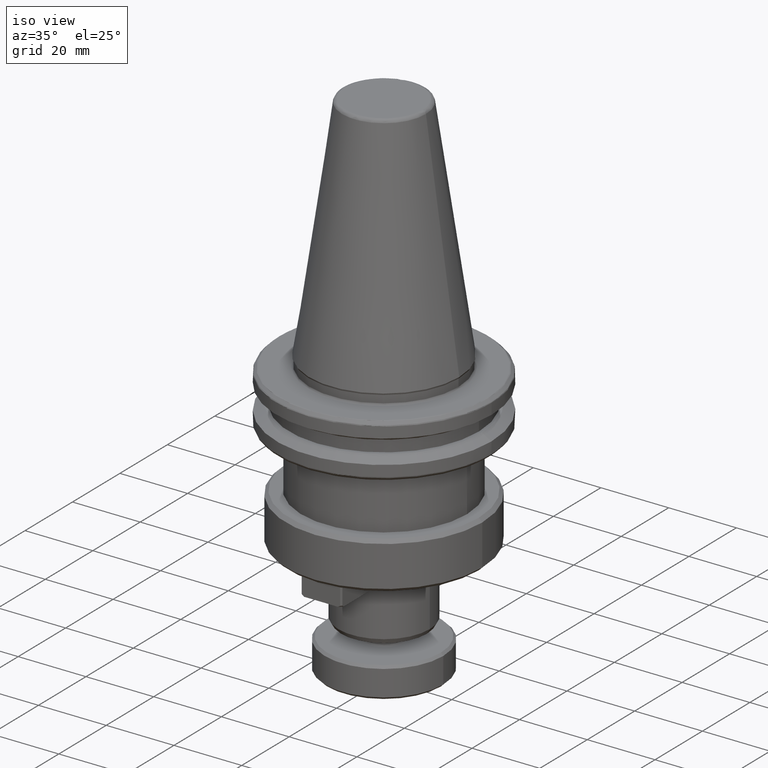
[diagram: clean part render]
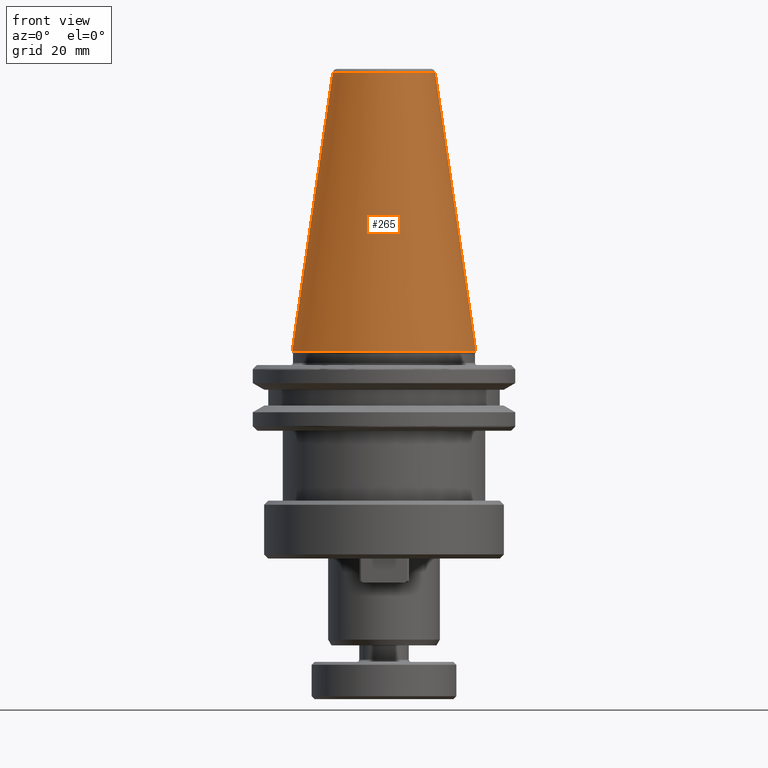
[diagram: tour spotlight — one face highlighted and labeled with its STEP entity id]
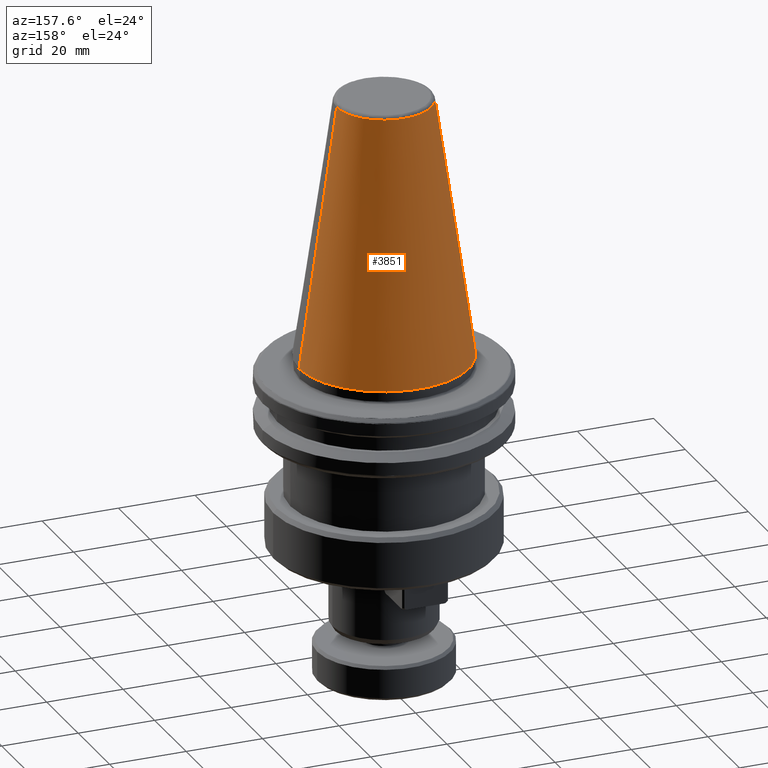
[diagram: tour spotlight — one face highlighted and labeled with its STEP entity id]
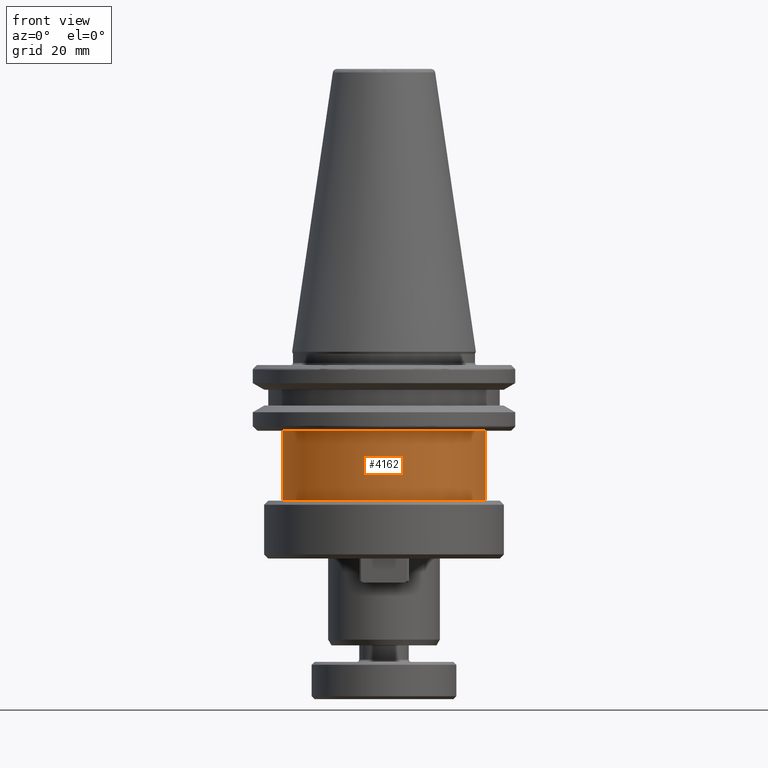
[diagram: tour spotlight — one face highlighted and labeled with its STEP entity id]
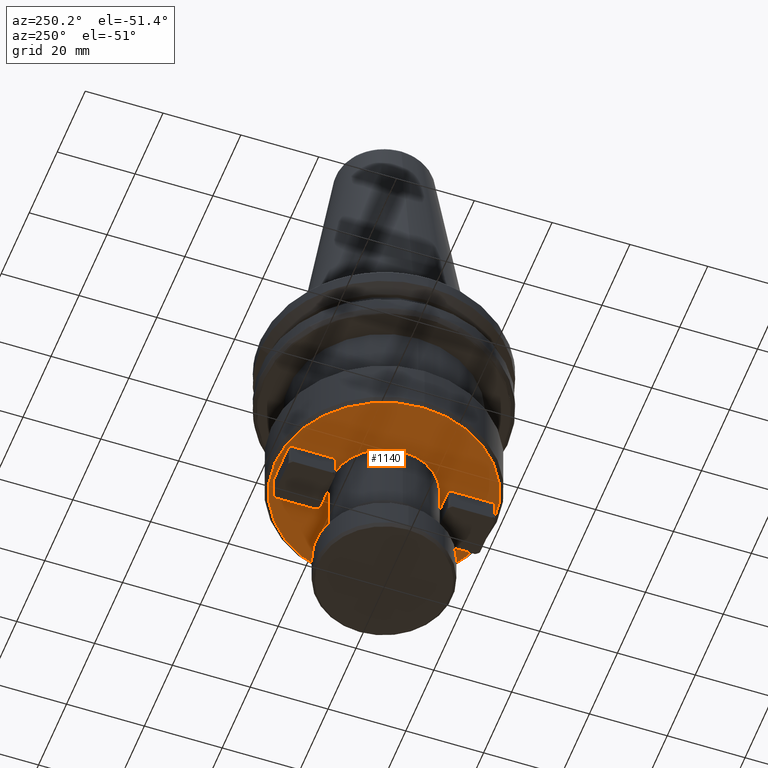
[diagram: tour spotlight — one face highlighted and labeled with its STEP entity id]
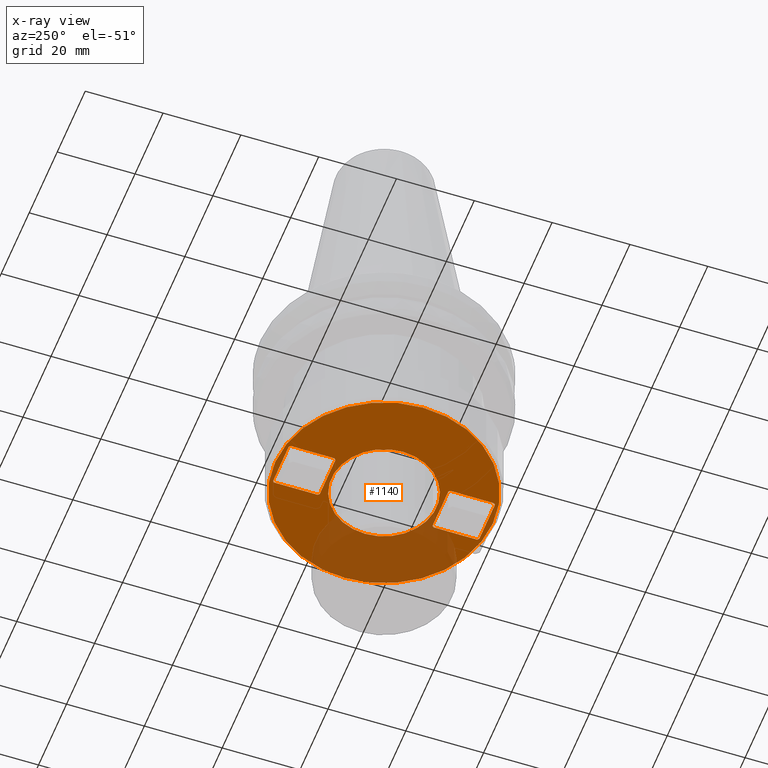
[diagram: x-ray of the same camera — body ghosted, this tour face saturated]
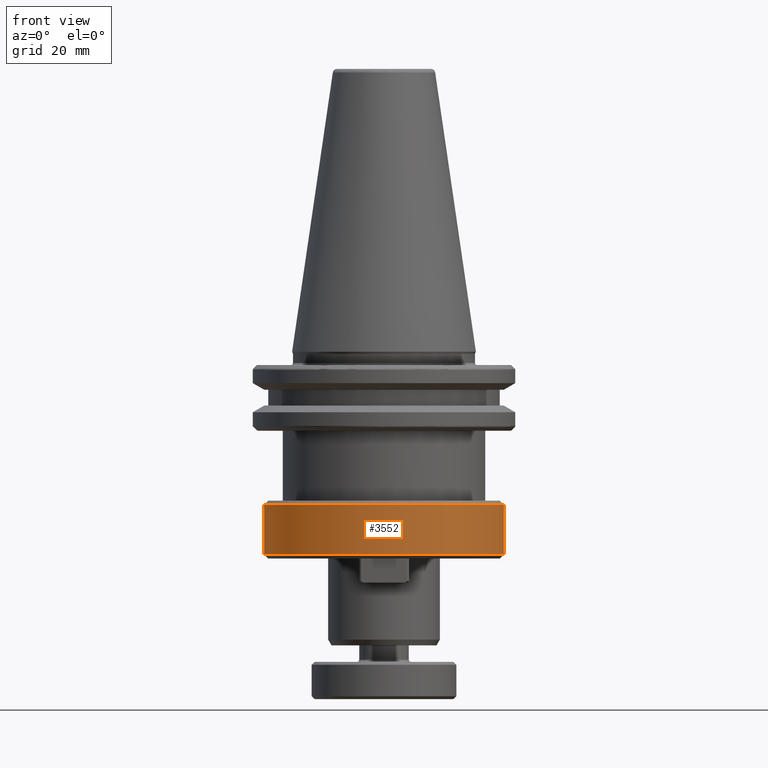
[diagram: tour spotlight — one face highlighted and labeled with its STEP entity id]
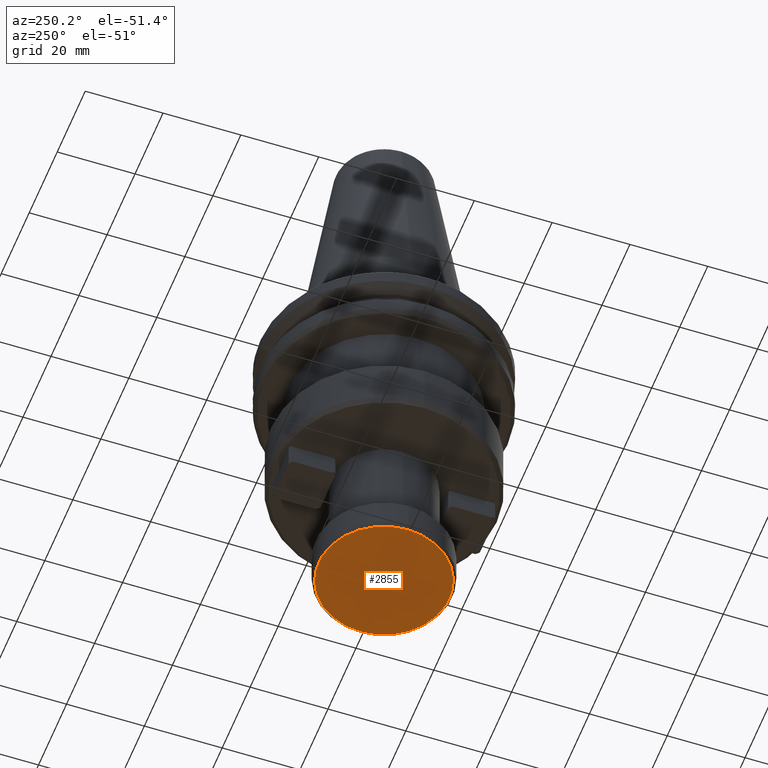
[diagram: tour spotlight — one face highlighted and labeled with its STEP entity id]
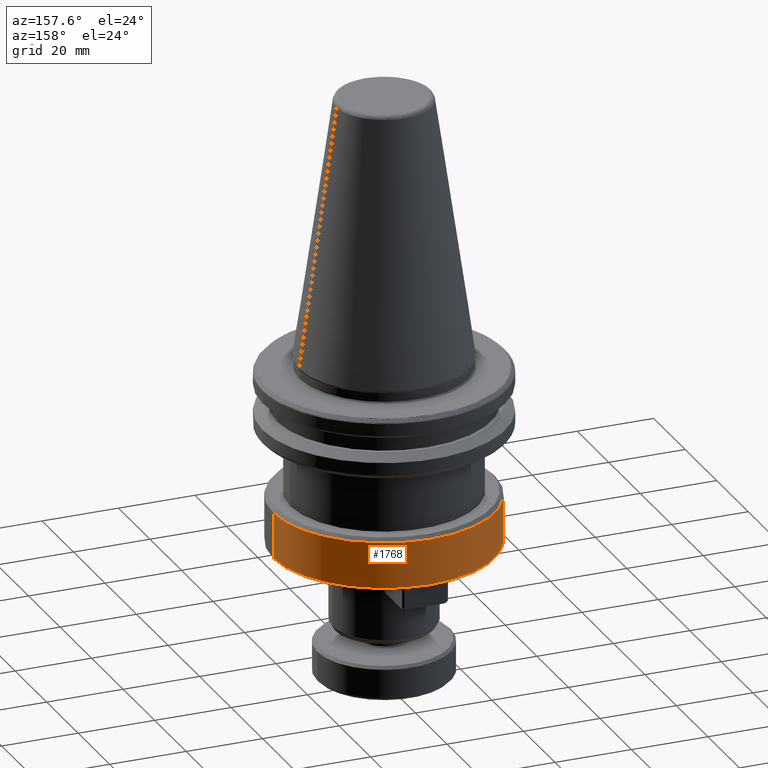
[diagram: tour spotlight — one face highlighted and labeled with its STEP entity id]
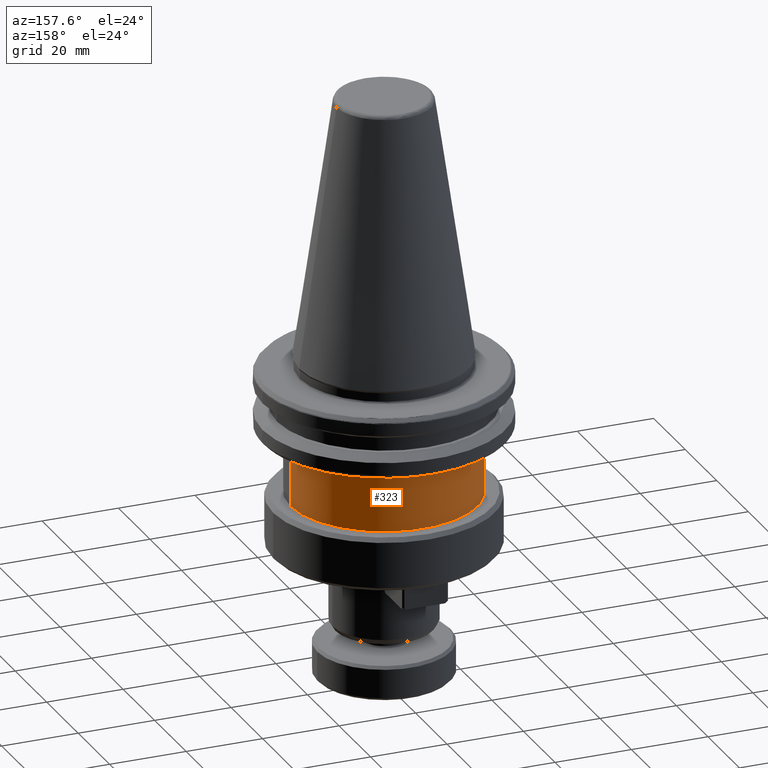
[diagram: tour spotlight — one face highlighted and labeled with its STEP entity id]
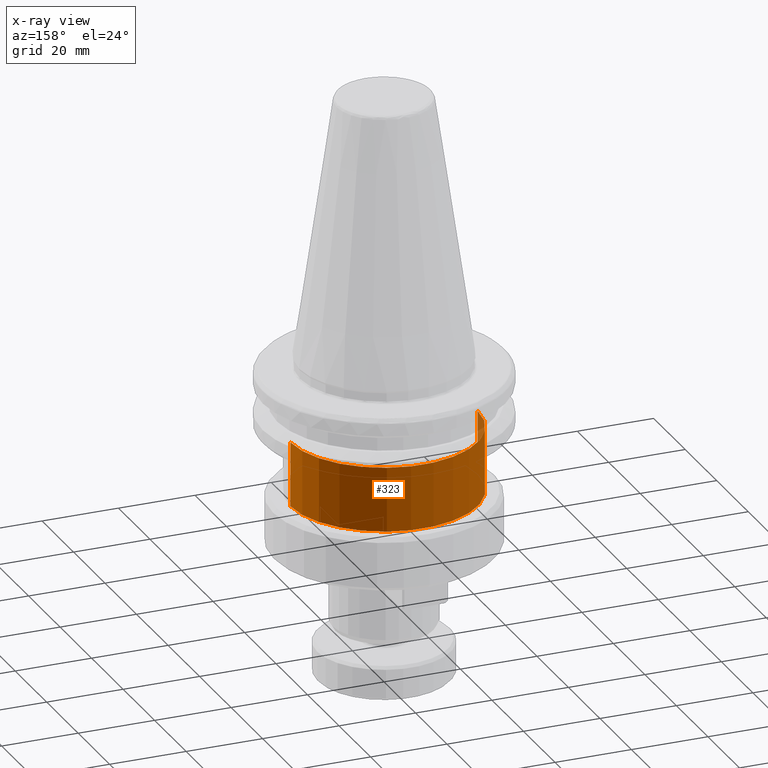
[diagram: x-ray of the same camera — body ghosted, this tour face saturated]
A machine part: a face-by-face anatomy tour. The part has 119 B-rep faces; the first image is the clean iso view, then the 8 largest visible faces are spotlighted one at a time (largest first), each with its STEP entity span.

Face 1 — front view, entity #265. In plain terms, the highlighted conical surface has half-angle 8.297 deg.
Definition (entity closure, byte-faithful):
#265 = ADVANCED_FACE ( 'NONE', ( #1366 ), #2048, .T. ) ;
#392 = CARTESIAN_POINT ( 'NONE',  ( 12.37469537611110800, 2.118620309691396900E-015, 67.54430822726729400 ) ) ;
#422 = VERTEX_POINT ( 'NONE', #1571 ) ;
#456 = ORIENTED_EDGE ( 'NONE', *, *, #2027, .F. ) ;
#620 = VECTOR ( 'NONE', #3922, 1000.000000000000000 ) ;
#717 = ORIENTED_EDGE ( 'NONE', *, *, #2779, .T. ) ;
#828 = CIRCLE ( 'NONE', #1792, 12.37469537611110800 ) ;
#858 = AXIS2_PLACEMENT_3D ( 'NONE', #1757, #1755, #1748 ) ;
#1298 = VECTOR ( 'NONE', #1623, 1000.000000000000000 ) ;
#1305 = CARTESIAN_POINT ( 'NONE',  ( 22.22500000000000500, 0.0000000000000000000, 0.0000000000000000000 ) ) ;
#1353 = ORIENTED_EDGE ( 'NONE', *, *, #2644, .T. ) ;
#1366 = FACE_OUTER_BOUND ( 'NONE', #2157, .T. ) ;
#1496 = CARTESIAN_POINT ( 'NONE',  ( 0.0000000000000000000, 0.0000000000000000000, 0.0000000000000000000 ) ) ;
#1571 = CARTESIAN_POINT ( 'NONE',  ( -12.37469537611110800, 0.0000000000000000000, 67.54430822726729400 ) ) ;
#1623 = DIRECTION ( 'NONE',  ( -0.1443082272673070500, 0.0000000000000000000, -0.9895327864921743500 ) ) ;
#1646 = CIRCLE ( 'NONE', #858, 22.22500000000000100 ) ;
#1681 = CARTESIAN_POINT ( 'NONE',  ( -22.22500000000000100, 0.0000000000000000000, 0.0000000000000000000 ) ) ;
#1748 = DIRECTION ( 'NONE',  ( -1.000000000000000000, 0.0000000000000000000, 6.244223985518314900E-016 ) ) ;
#1755 = DIRECTION ( 'NONE',  ( -0.0000000000000000000, -0.0000000000000000000, 1.000000000000000000 ) ) ;
#1757 = CARTESIAN_POINT ( 'NONE',  ( 0.0000000000000000000, 0.0000000000000000000, 0.0000000000000000000 ) ) ;
#1766 = DIRECTION ( 'NONE',  ( -1.000000000000000000, 0.0000000000000000000, 0.0000000000000000000 ) ) ;
#1792 = AXIS2_PLACEMENT_3D ( 'NONE', #2176, #4516, #2527 ) ;
#1812 = DIRECTION ( 'NONE',  ( 0.0000000000000000000, 0.0000000000000000000, -1.000000000000000000 ) ) ;
#2027 = EDGE_CURVE ( 'NONE', #3199, #4182, #3462, .T. ) ;
#2048 = CONICAL_SURFACE ( 'NONE', #3950, 22.22500000000000100, 0.1448138465474190500 ) ;
#2157 = EDGE_LOOP ( 'NONE', ( #456, #2197, #717, #1353 ) ) ;
#2176 = CARTESIAN_POINT ( 'NONE',  ( 0.0000000000000000000, 0.0000000000000000000, 67.54430822726729400 ) ) ;
#2197 = ORIENTED_EDGE ( 'NONE', *, *, #4438, .T. ) ;
#2527 = DIRECTION ( 'NONE',  ( -1.000000000000000000, 0.0000000000000000000, 0.0000000000000000000 ) ) ;
#2644 = EDGE_CURVE ( 'NONE', #4416, #4182, #1646, .T. ) ;
#2779 = EDGE_CURVE ( 'NONE', #422, #4416, #3251, .T. ) ;
#3199 = VERTEX_POINT ( 'NONE', #392 ) ;
#3251 = LINE ( 'NONE', #1681, #1298 ) ;
#3462 = LINE ( 'NONE', #3917, #620 ) ;
#3917 = CARTESIAN_POINT ( 'NONE',  ( 22.22500000000000100, 2.721777511104992800E-015, 0.0000000000000000000 ) ) ;
#3922 = DIRECTION ( 'NONE',  ( 0.1443082272673070500, 1.767266086135363700E-017, -0.9895327864921743500 ) ) ;
#3950 = AXIS2_PLACEMENT_3D ( 'NONE', #1496, #1812, #1766 ) ;
#4182 = VERTEX_POINT ( 'NONE', #1305 ) ;
#4416 = VERTEX_POINT ( 'NONE', #4483 ) ;
#4438 = EDGE_CURVE ( 'NONE', #3199, #422, #828, .T. ) ;
#4483 = CARTESIAN_POINT ( 'NONE',  ( -22.22500000000000500, 2.721777511104993200E-015, 0.0000000000000000000 ) ) ;
#4516 = DIRECTION ( 'NONE',  ( 0.0000000000000000000, 0.0000000000000000000, -1.000000000000000000 ) ) ;

Face 2 — auxiliary view, entity #3851. In plain terms, the highlighted conical surface has half-angle 8.297 deg.
Definition (entity closure, byte-faithful):
#392 = CARTESIAN_POINT ( 'NONE',  ( 12.37469537611110800, 2.118620309691396900E-015, 67.54430822726729400 ) ) ;
#422 = VERTEX_POINT ( 'NONE', #1571 ) ;
#620 = VECTOR ( 'NONE', #3922, 1000.000000000000000 ) ;
#637 = DIRECTION ( 'NONE',  ( 0.0000000000000000000, 0.0000000000000000000, -1.000000000000000000 ) ) ;
#685 = DIRECTION ( 'NONE',  ( -1.000000000000000000, 0.0000000000000000000, 0.0000000000000000000 ) ) ;
#749 = CIRCLE ( 'NONE', #4380, 22.22500000000000100 ) ;
#840 = CARTESIAN_POINT ( 'NONE',  ( 0.0000000000000000000, 0.0000000000000000000, 67.54430822726729400 ) ) ;
#1298 = VECTOR ( 'NONE', #1623, 1000.000000000000000 ) ;
#1305 = CARTESIAN_POINT ( 'NONE',  ( 22.22500000000000500, 0.0000000000000000000, 0.0000000000000000000 ) ) ;
#1405 = CARTESIAN_POINT ( 'NONE',  ( 0.0000000000000000000, 0.0000000000000000000, 0.0000000000000000000 ) ) ;
#1571 = CARTESIAN_POINT ( 'NONE',  ( -12.37469537611110800, 0.0000000000000000000, 67.54430822726729400 ) ) ;
#1623 = DIRECTION ( 'NONE',  ( -0.1443082272673070500, 0.0000000000000000000, -0.9895327864921743500 ) ) ;
#1681 = CARTESIAN_POINT ( 'NONE',  ( -22.22500000000000100, 0.0000000000000000000, 0.0000000000000000000 ) ) ;
#1719 = EDGE_CURVE ( 'NONE', #422, #3199, #3313, .T. ) ;
#1860 = DIRECTION ( 'NONE',  ( -1.000000000000000000, 0.0000000000000000000, 6.244223985518314900E-016 ) ) ;
#1864 = ORIENTED_EDGE ( 'NONE', *, *, #2779, .F. ) ;
#1869 = DIRECTION ( 'NONE',  ( -0.0000000000000000000, -0.0000000000000000000, 1.000000000000000000 ) ) ;
#1874 = CARTESIAN_POINT ( 'NONE',  ( 0.0000000000000000000, 0.0000000000000000000, 0.0000000000000000000 ) ) ;
#1973 = EDGE_LOOP ( 'NONE', ( #2939, #4045, #2438, #1864 ) ) ;
#2027 = EDGE_CURVE ( 'NONE', #3199, #4182, #3462, .T. ) ;
#2377 = CONICAL_SURFACE ( 'NONE', #4299, 22.22500000000000100, 0.1448138465474190500 ) ;
#2438 = ORIENTED_EDGE ( 'NONE', *, *, #2568, .T. ) ;
#2568 = EDGE_CURVE ( 'NONE', #4182, #4416, #749, .T. ) ;
#2624 = AXIS2_PLACEMENT_3D ( 'NONE', #840, #637, #685 ) ;
#2779 = EDGE_CURVE ( 'NONE', #422, #4416, #3251, .T. ) ;
#2939 = ORIENTED_EDGE ( 'NONE', *, *, #1719, .T. ) ;
#3199 = VERTEX_POINT ( 'NONE', #392 ) ;
#3251 = LINE ( 'NONE', #1681, #1298 ) ;
#3313 = CIRCLE ( 'NONE', #2624, 12.37469537611110800 ) ;
#3462 = LINE ( 'NONE', #3917, #620 ) ;
#3482 = DIRECTION ( 'NONE',  ( -1.000000000000000000, 0.0000000000000000000, 0.0000000000000000000 ) ) ;
#3801 = DIRECTION ( 'NONE',  ( 0.0000000000000000000, 0.0000000000000000000, -1.000000000000000000 ) ) ;
#3851 = ADVANCED_FACE ( 'NONE', ( #4375 ), #2377, .T. ) ;
#3917 = CARTESIAN_POINT ( 'NONE',  ( 22.22500000000000100, 2.721777511104992800E-015, 0.0000000000000000000 ) ) ;
#3922 = DIRECTION ( 'NONE',  ( 0.1443082272673070500, 1.767266086135363700E-017, -0.9895327864921743500 ) ) ;
#4045 = ORIENTED_EDGE ( 'NONE', *, *, #2027, .T. ) ;
#4182 = VERTEX_POINT ( 'NONE', #1305 ) ;
#4299 = AXIS2_PLACEMENT_3D ( 'NONE', #1405, #3801, #3482 ) ;
#4375 = FACE_OUTER_BOUND ( 'NONE', #1973, .T. ) ;
#4380 = AXIS2_PLACEMENT_3D ( 'NONE', #1874, #1869, #1860 ) ;
#4416 = VERTEX_POINT ( 'NONE', #4483 ) ;
#4483 = CARTESIAN_POINT ( 'NONE',  ( -22.22500000000000500, 2.721777511104993200E-015, 0.0000000000000000000 ) ) ;

Face 3 — front view, entity #4162. In plain terms, the highlighted cylindrical surface (partial cylindrical patch) has radius 24.5 mm, axis along (0, 0, 1).
Definition (entity closure, byte-faithful):
#49 = ORIENTED_EDGE ( 'NONE', *, *, #3924, .T. ) ;
#122 = ORIENTED_EDGE ( 'NONE', *, *, #1875, .T. ) ;
#126 = AXIS2_PLACEMENT_3D ( 'NONE', #1258, #1254, #1247 ) ;
#145 = CARTESIAN_POINT ( 'NONE',  ( -24.50000000000000000, 3.000384657911015500E-015, -19.10000000000000500 ) ) ;
#221 = ORIENTED_EDGE ( 'NONE', *, *, #2789, .T. ) ;
#386 = CIRCLE ( 'NONE', #2031, 24.50000000000000000 ) ;
#462 = CIRCLE ( 'NONE', #126, 24.50000000000000000 ) ;
#557 = CIRCLE ( 'NONE', #1513, 24.50000000000000000 ) ;
#614 = DIRECTION ( 'NONE',  ( 1.000000000000000000, 0.0000000000000000000, 0.0000000000000000000 ) ) ;
#617 = DIRECTION ( 'NONE',  ( 0.0000000000000000000, 0.0000000000000000000, 1.000000000000000000 ) ) ;
#627 = CARTESIAN_POINT ( 'NONE',  ( 0.0000000000000000000, 0.0000000000000000000, -19.10000000000000500 ) ) ;
#864 = CARTESIAN_POINT ( 'NONE',  ( 24.49912268321000400, -0.2073348813517278400, -27.14732951027700000 ) ) ;
#982 = EDGE_CURVE ( 'NONE', #2899, #2635, #462, .T. ) ;
#1082 = VERTEX_POINT ( 'NONE', #1134 ) ;
#1134 = CARTESIAN_POINT ( 'NONE',  ( 24.50000000000000000, 0.0000000000000000000, -27.15000000000000900 ) ) ;
#1159 = VERTEX_POINT ( 'NONE', #864 ) ;
#1247 = DIRECTION ( 'NONE',  ( 1.000000000000000000, 0.0000000000000000000, 0.0000000000000000000 ) ) ;
#1254 = DIRECTION ( 'NONE',  ( 0.0000000000000000000, 0.0000000000000000000, 1.000000000000000000 ) ) ;
#1258 = CARTESIAN_POINT ( 'NONE',  ( 0.0000000000000000000, 0.0000000000000000000, -36.00000000000000700 ) ) ;
#1324 = VERTEX_POINT ( 'NONE', #145 ) ;
#1333 = CARTESIAN_POINT ( 'NONE',  ( -24.50000000000000000, 3.000384657911015500E-015, -36.00000000000000700 ) ) ;
#1437 = CARTESIAN_POINT ( 'NONE',  ( 24.50000000000000000, 0.0000000000000000000, 82.95681253582424100 ) ) ;
#1438 = DIRECTION ( 'NONE',  ( 0.0000000000000000000, 0.0000000000000000000, 1.000000000000000000 ) ) ;
#1513 = AXIS2_PLACEMENT_3D ( 'NONE', #627, #617, #614 ) ;
#1590 = DIRECTION ( 'NONE',  ( 1.000000000000000000, 0.0000000000000000000, 0.0000000000000000000 ) ) ;
#1596 = DIRECTION ( 'NONE',  ( -0.0000000000000000000, -0.0000000000000000000, 1.000000000000000000 ) ) ;
#1602 = CARTESIAN_POINT ( 'NONE',  ( 0.0000000000000000000, 0.0000000000000000000, -27.14732951027700000 ) ) ;
#1636 = VECTOR ( 'NONE', #1788, 1000.000000000000000 ) ;
#1669 = ORIENTED_EDGE ( 'NONE', *, *, #2852, .T. ) ;
#1752 = CARTESIAN_POINT ( 'NONE',  ( -24.50000000000000000, 3.000384657911015500E-015, 82.95681253582424100 ) ) ;
#1788 = DIRECTION ( 'NONE',  ( 0.0000000000000000000, 0.0000000000000000000, 1.000000000000000000 ) ) ;
#1801 = CARTESIAN_POINT ( 'NONE',  ( 24.50000000000000000, 0.0000000000000000000, -36.00000000000000700 ) ) ;
#1803 = DIRECTION ( 'NONE',  ( 0.0000000000000000000, 0.0000000000000000000, 1.000000000000000000 ) ) ;
#1875 = EDGE_CURVE ( 'NONE', #1082, #1159, #3331, .T. ) ;
#1972 = DIRECTION ( 'NONE',  ( 1.000000000000000000, 0.0000000000000000000, 0.0000000000000000000 ) ) ;
#2019 = ORIENTED_EDGE ( 'NONE', *, *, #3114, .F. ) ;
#2031 = AXIS2_PLACEMENT_3D ( 'NONE', #1602, #1596, #1590 ) ;
#2275 = VECTOR ( 'NONE', #1803, 1000.000000000000000 ) ;
#2316 = DIRECTION ( 'NONE',  ( 0.0000000000000000000, 0.0000000000000000000, 1.000000000000000000 ) ) ;
#2363 = VERTEX_POINT ( 'NONE', #2688 ) ;
#2421 = FACE_OUTER_BOUND ( 'NONE', #4475, .T. ) ;
#2481 = CARTESIAN_POINT ( 'NONE',  ( 24.50000000000000000, 0.0000000000000000000, 82.95681253582424100 ) ) ;
#2570 = AXIS2_PLACEMENT_3D ( 'NONE', #4333, #2316, #1972 ) ;
#2635 = VERTEX_POINT ( 'NONE', #1801 ) ;
#2688 = CARTESIAN_POINT ( 'NONE',  ( 24.50000000000000000, 0.0000000000000000000, -19.10000000000000500 ) ) ;
#2751 = ORIENTED_EDGE ( 'NONE', *, *, #3327, .F. ) ;
#2787 = LINE ( 'NONE', #1437, #2901 ) ;
#2789 = EDGE_CURVE ( 'NONE', #1159, #4202, #386, .T. ) ;
#2852 = EDGE_CURVE ( 'NONE', #4202, #2363, #2787, .T. ) ;
#2899 = VERTEX_POINT ( 'NONE', #1333 ) ;
#2901 = VECTOR ( 'NONE', #1438, 1000.000000000000000 ) ;
#3114 = EDGE_CURVE ( 'NONE', #1324, #2363, #557, .T. ) ;
#3264 = CYLINDRICAL_SURFACE ( 'NONE', #2570, 24.50000000000000000 ) ;
#3327 = EDGE_CURVE ( 'NONE', #2899, #1324, #3448, .T. ) ;
#3331 = B_SPLINE_CURVE_WITH_KNOTS ( 'NONE', 3,
 ( #4168, #4179, #4155, #4151 ),
 .UNSPECIFIED., .F., .F.,
 ( 4, 4 ),
 ( -2.710505431213761100E-018, 0.0002047699825843850500 ),
 .UNSPECIFIED. ) ;
#3448 = LINE ( 'NONE', #1752, #1636 ) ;
#3628 = ORIENTED_EDGE ( 'NONE', *, *, #982, .T. ) ;
#3723 = CARTESIAN_POINT ( 'NONE',  ( 24.50000000000000000, 0.0000000000000000000, -27.14732951027700000 ) ) ;
#3924 = EDGE_CURVE ( 'NONE', #2635, #1082, #3983, .T. ) ;
#3983 = LINE ( 'NONE', #2481, #2275 ) ;
#4151 = CARTESIAN_POINT ( 'NONE',  ( 24.49912268321000400, -0.2073348813517278400, -27.14732951027700000 ) ) ;
#4155 = CARTESIAN_POINT ( 'NONE',  ( 24.49970620343959000, -0.1383849121057702200, -27.14910596713447100 ) ) ;
#4162 = ADVANCED_FACE ( 'NONE', ( #2421 ), #3264, .T. ) ;
#4168 = CARTESIAN_POINT ( 'NONE',  ( 24.50000000000000000, 0.0000000000000000000, -27.15000000000000900 ) ) ;
#4179 = CARTESIAN_POINT ( 'NONE',  ( 24.50000000000000000, -0.06927399539046044700, -27.15000000000000900 ) ) ;
#4202 = VERTEX_POINT ( 'NONE', #3723 ) ;
#4333 = CARTESIAN_POINT ( 'NONE',  ( 0.0000000000000000000, 0.0000000000000000000, 82.95681253582424100 ) ) ;
#4475 = EDGE_LOOP ( 'NONE', ( #2751, #3628, #49, #122, #221, #1669, #2019 ) ) ;

Face 4 — auxiliary view, entity #1140. An x-ray twin of the same camera follows (body ghosted, this face saturated) — the face is partly hidden behind the body. In plain terms, the highlighted planar face has unit normal (0, 0, 1).
Definition (entity closure, byte-faithful):
#35 = VERTEX_POINT ( 'NONE', #3211 ) ;
#64 = CARTESIAN_POINT ( 'NONE',  ( -6.000000000000012400, -26.09999999999999800, -50.00000000000000000 ) ) ;
#74 = CARTESIAN_POINT ( 'NONE',  ( -6.000000000000003600, 14.90000000000000700, -50.00000000000000000 ) ) ;
#82 = CARTESIAN_POINT ( 'NONE',  ( -13.50000000000000000, 1.653273178848926900E-015, -50.00000000000001400 ) ) ;
#146 = ORIENTED_EDGE ( 'NONE', *, *, #2760, .F. ) ;
#155 = LINE ( 'NONE', #2790, #2921 ) ;
#160 = DIRECTION ( 'NONE',  ( -1.000000000000000000, -0.0000000000000000000, 0.0000000000000000000 ) ) ;
#162 = CARTESIAN_POINT ( 'NONE',  ( 0.0000000000000000000, 14.50000000000000900, -50.00000000000000000 ) ) ;
#251 = ORIENTED_EDGE ( 'NONE', *, *, #367, .F. ) ;
#255 = EDGE_CURVE ( 'NONE', #1350, #1597, #2162, .T. ) ;
#314 = DIRECTION ( 'NONE',  ( 1.000000000000000000, 0.0000000000000000000, 0.0000000000000000000 ) ) ;
#328 = VERTEX_POINT ( 'NONE', #1031 ) ;
#336 = VECTOR ( 'NONE', #3602, 1000.000000000000000 ) ;
#356 = DIRECTION ( 'NONE',  ( 0.0000000000000000000, 0.0000000000000000000, 1.000000000000000000 ) ) ;
#367 = EDGE_CURVE ( 'NONE', #522, #4068, #2551, .T. ) ;
#415 = CARTESIAN_POINT ( 'NONE',  ( 0.0000000000000000000, 0.0000000000000000000, -49.99999999999998600 ) ) ;
#435 = CARTESIAN_POINT ( 'NONE',  ( 0.0000000000000000000, -26.50000000000000700, -50.00000000000000000 ) ) ;
#459 = ORIENTED_EDGE ( 'NONE', *, *, #2188, .T. ) ;
#508 = DIRECTION ( 'NONE',  ( -1.000000000000000000, -0.0000000000000000000, 0.0000000000000000000 ) ) ;
#522 = VERTEX_POINT ( 'NONE', #4234 ) ;
#644 = VERTEX_POINT ( 'NONE', #2886 ) ;
#656 = DIRECTION ( 'NONE',  ( -0.7071067811865483500, 0.7071067811865468000, -0.0000000000000000000 ) ) ;
#695 = VECTOR ( 'NONE', #2117, 1000.000000000000100 ) ;
#710 = ORIENTED_EDGE ( 'NONE', *, *, #255, .F. ) ;
#767 = VECTOR ( 'NONE', #508, 1000.000000000000000 ) ;
#771 = EDGE_CURVE ( 'NONE', #4386, #1907, #2714, .T. ) ;
#875 = DIRECTION ( 'NONE',  ( 1.000000000000000000, 0.0000000000000000000, -0.0000000000000000000 ) ) ;
#882 = DIRECTION ( 'NONE',  ( 0.0000000000000000000, 0.0000000000000000000, 1.000000000000000000 ) ) ;
#897 = PLANE ( 'NONE',  #4350 ) ;
#900 = ORIENTED_EDGE ( 'NONE', *, *, #3601, .F. ) ;
#923 = CARTESIAN_POINT ( 'NONE',  ( 0.0000000000000000000, 28.00000000000000000, -50.00000000000000000 ) ) ;
#932 = EDGE_CURVE ( 'NONE', #1370, #1880, #1707, .T. ) ;
#953 = LINE ( 'NONE', #3394, #2703 ) ;
#992 = EDGE_LOOP ( 'NONE', ( #900, #1411 ) ) ;
#1010 = VECTOR ( 'NONE', #1125, 1000.000000000000000 ) ;
#1015 = EDGE_CURVE ( 'NONE', #1653, #3456, #1360, .T. ) ;
#1031 = CARTESIAN_POINT ( 'NONE',  ( 28.00000000000000000, 0.0000000000000000000, -49.99999999999998600 ) ) ;
#1052 = CIRCLE ( 'NONE', #3218, 13.50000000000000000 ) ;
#1059 = VECTOR ( 'NONE', #3501, 1000.000000000000000 ) ;
#1125 = DIRECTION ( 'NONE',  ( 1.000000000000000000, 0.0000000000000000000, -0.0000000000000000000 ) ) ;
#1140 = ADVANCED_FACE ( 'NONE', ( #1742, #3582, #4412, #2658 ), #897, .F. ) ;
#1262 = CARTESIAN_POINT ( 'NONE',  ( 6.000000000000003600, -14.90000000000000700, -50.00000000000000000 ) ) ;
#1285 = CARTESIAN_POINT ( 'NONE',  ( 5.600000000000004100, -14.50000000000000900, -50.00000000000000000 ) ) ;
#1296 = EDGE_LOOP ( 'NONE', ( #1743, #1909, #2873, #2935, #3136, #3476, #3539, #3782 ) ) ;
#1300 = DIRECTION ( 'NONE',  ( -0.0000000000000000000, 1.000000000000000000, 0.0000000000000000000 ) ) ;
#1302 = CARTESIAN_POINT ( 'NONE',  ( -6.000000000000012400, 28.00000000000000000, -50.00000000000000000 ) ) ;
#1315 = EDGE_CURVE ( 'NONE', #2187, #2102, #4321, .T. ) ;
#1350 = VERTEX_POINT ( 'NONE', #82 ) ;
#1351 = VERTEX_POINT ( 'NONE', #74 ) ;
#1360 = LINE ( 'NONE', #1262, #336 ) ;
#1370 = VERTEX_POINT ( 'NONE', #64 ) ;
#1392 = EDGE_CURVE ( 'NONE', #1351, #3648, #2090, .T. ) ;
#1400 = ORIENTED_EDGE ( 'NONE', *, *, #4523, .F. ) ;
#1411 = ORIENTED_EDGE ( 'NONE', *, *, #3344, .F. ) ;
#1481 = VECTOR ( 'NONE', #1300, 1000.000000000000000 ) ;
#1497 = DIRECTION ( 'NONE',  ( 1.000000000000000000, 0.0000000000000000000, 0.0000000000000000000 ) ) ;
#1500 = DIRECTION ( 'NONE',  ( -0.0000000000000000000, -0.0000000000000000000, -1.000000000000000000 ) ) ;
#1502 = CARTESIAN_POINT ( 'NONE',  ( 0.0000000000000000000, 0.0000000000000000000, -50.00000000000001400 ) ) ;
#1552 = CARTESIAN_POINT ( 'NONE',  ( 5.999999999999996400, -26.10000000000000500, -50.00000000000000000 ) ) ;
#1578 = CARTESIAN_POINT ( 'NONE',  ( 6.000000000000003600, 28.00000000000000000, -50.00000000000000000 ) ) ;
#1597 = VERTEX_POINT ( 'NONE', #1811 ) ;
#1627 = DIRECTION ( 'NONE',  ( -0.7071067811865474600, -0.7071067811865474600, -0.0000000000000000000 ) ) ;
#1631 = CARTESIAN_POINT ( 'NONE',  ( -5.600000000000030700, -14.50000000000000900, -50.00000000000000000 ) ) ;
#1653 = VERTEX_POINT ( 'NONE', #1285 ) ;
#1659 = DIRECTION ( 'NONE',  ( -0.7071067811865474600, 0.7071067811865474600, -0.0000000000000000000 ) ) ;
#1661 = CARTESIAN_POINT ( 'NONE',  ( -6.000000000000012400, -26.09999999999999800, -50.00000000000000000 ) ) ;
#1707 = LINE ( 'NONE', #1302, #1481 ) ;
#1721 = DIRECTION ( 'NONE',  ( 1.000000000000000000, 0.0000000000000000000, 0.0000000000000000000 ) ) ;
#1742 = FACE_BOUND ( 'NONE', #3697, .T. ) ;
#1743 = ORIENTED_EDGE ( 'NONE', *, *, #771, .F. ) ;
#1751 = DIRECTION ( 'NONE',  ( -0.0000000000000000000, -0.0000000000000000000, -1.000000000000000000 ) ) ;
#1765 = CARTESIAN_POINT ( 'NONE',  ( 0.0000000000000000000, 0.0000000000000000000, -50.00000000000001400 ) ) ;
#1784 = VECTOR ( 'NONE', #3393, 1000.000000000000100 ) ;
#1811 = CARTESIAN_POINT ( 'NONE',  ( 13.50000000000000000, 0.0000000000000000000, -50.00000000000001400 ) ) ;
#1820 = CARTESIAN_POINT ( 'NONE',  ( 6.000000000000003600, 14.89999999999998300, -50.00000000000000000 ) ) ;
#1838 = LINE ( 'NONE', #1918, #4403 ) ;
#1880 = VERTEX_POINT ( 'NONE', #4195 ) ;
#1907 = VERTEX_POINT ( 'NONE', #4143 ) ;
#1909 = ORIENTED_EDGE ( 'NONE', *, *, #2160, .F. ) ;
#1915 = DIRECTION ( 'NONE',  ( 0.0000000000000000000, -1.000000000000000000, -0.0000000000000000000 ) ) ;
#1918 = CARTESIAN_POINT ( 'NONE',  ( 6.000000000000012400, 28.00000000000000000, -50.00000000000000000 ) ) ;
#1957 = LINE ( 'NONE', #3895, #1010 ) ;
#2083 = ORIENTED_EDGE ( 'NONE', *, *, #1015, .F. ) ;
#2090 = LINE ( 'NONE', #4248, #3923 ) ;
#2102 = VERTEX_POINT ( 'NONE', #3752 ) ;
#2117 = DIRECTION ( 'NONE',  ( 0.7071067811865474600, -0.7071067811865474600, -0.0000000000000000000 ) ) ;
#2120 = CARTESIAN_POINT ( 'NONE',  ( 6.000000000000012400, 26.09999999999999800, -50.00000000000000000 ) ) ;
#2121 = CARTESIAN_POINT ( 'NONE',  ( 5.600000000000000500, 26.50000000000001100, -50.00000000000000000 ) ) ;
#2160 = EDGE_CURVE ( 'NONE', #3558, #4386, #3725, .T. ) ;
#2162 = CIRCLE ( 'NONE', #3523, 13.50000000000000000 ) ;
#2170 = DIRECTION ( 'NONE',  ( 0.0000000000000000000, 0.0000000000000000000, 1.000000000000000000 ) ) ;
#2186 = CARTESIAN_POINT ( 'NONE',  ( -5.999999999999995600, 26.10000000000000900, -50.00000000000000000 ) ) ;
#2187 = VERTEX_POINT ( 'NONE', #3407 ) ;
#2188 = EDGE_CURVE ( 'NONE', #522, #2813, #2208, .T. ) ;
#2198 = EDGE_CURVE ( 'NONE', #2187, #2630, #953, .T. ) ;
#2208 = LINE ( 'NONE', #2878, #1784 ) ;
#2239 = DIRECTION ( 'NONE',  ( 0.0000000000000000000, -1.000000000000000000, -0.0000000000000000000 ) ) ;
#2263 = VECTOR ( 'NONE', #2295, 1000.000000000000100 ) ;
#2283 = CARTESIAN_POINT ( 'NONE',  ( -5.599999999999995200, 26.50000000000001100, -50.00000000000000000 ) ) ;
#2295 = DIRECTION ( 'NONE',  ( -0.7071067811865474600, -0.7071067811865474600, -0.0000000000000000000 ) ) ;
#2409 = VECTOR ( 'NONE', #1659, 1000.000000000000100 ) ;
#2427 = EDGE_CURVE ( 'NONE', #3558, #3648, #4067, .T. ) ;
#2524 = CIRCLE ( 'NONE', #3145, 28.00000000000000000 ) ;
#2550 = EDGE_CURVE ( 'NONE', #1907, #2630, #1838, .T. ) ;
#2551 = LINE ( 'NONE', #435, #767 ) ;
#2630 = VERTEX_POINT ( 'NONE', #1820 ) ;
#2658 = FACE_BOUND ( 'NONE', #3962, .T. ) ;
#2703 = VECTOR ( 'NONE', #3400, 1000.000000000000100 ) ;
#2714 = LINE ( 'NONE', #2120, #695 ) ;
#2760 = EDGE_CURVE ( 'NONE', #4068, #1370, #4212, .T. ) ;
#2772 = EDGE_CURVE ( 'NONE', #35, #1880, #4014, .T. ) ;
#2790 = CARTESIAN_POINT ( 'NONE',  ( -6.000000000000003600, 14.90000000000000700, -50.00000000000000000 ) ) ;
#2813 = VERTEX_POINT ( 'NONE', #1552 ) ;
#2815 = AXIS2_PLACEMENT_3D ( 'NONE', #4199, #2170, #4509 ) ;
#2826 = EDGE_CURVE ( 'NONE', #1597, #1350, #1052, .T. ) ;
#2873 = ORIENTED_EDGE ( 'NONE', *, *, #2427, .T. ) ;
#2878 = CARTESIAN_POINT ( 'NONE',  ( 5.599999999999995200, -26.50000000000001100, -50.00000000000000000 ) ) ;
#2886 = CARTESIAN_POINT ( 'NONE',  ( -28.00000000000000000, 3.490243377569956500E-015, -49.99999999999998600 ) ) ;
#2921 = VECTOR ( 'NONE', #656, 1000.000000000000000 ) ;
#2935 = ORIENTED_EDGE ( 'NONE', *, *, #1392, .F. ) ;
#3124 = VECTOR ( 'NONE', #1627, 1000.000000000000100 ) ;
#3128 = ORIENTED_EDGE ( 'NONE', *, *, #4026, .F. ) ;
#3136 = ORIENTED_EDGE ( 'NONE', *, *, #4311, .F. ) ;
#3145 = AXIS2_PLACEMENT_3D ( 'NONE', #415, #356, #314 ) ;
#3178 = CARTESIAN_POINT ( 'NONE',  ( -5.599999999999995200, 26.50000000000001100, -50.00000000000000000 ) ) ;
#3211 = CARTESIAN_POINT ( 'NONE',  ( -5.600000000000030700, -14.50000000000000900, -50.00000000000000000 ) ) ;
#3218 = AXIS2_PLACEMENT_3D ( 'NONE', #1502, #1500, #1497 ) ;
#3261 = CARTESIAN_POINT ( 'NONE',  ( -5.600000000000000500, -26.50000000000001100, -50.00000000000000000 ) ) ;
#3262 = VECTOR ( 'NONE', #160, 1000.000000000000000 ) ;
#3344 = EDGE_CURVE ( 'NONE', #644, #328, #2524, .T. ) ;
#3365 = ORIENTED_EDGE ( 'NONE', *, *, #2772, .T. ) ;
#3393 = DIRECTION ( 'NONE',  ( 0.7071067811865474600, 0.7071067811865474600, -0.0000000000000000000 ) ) ;
#3394 = CARTESIAN_POINT ( 'NONE',  ( 5.600000000000030700, 14.50000000000000900, -50.00000000000000000 ) ) ;
#3400 = DIRECTION ( 'NONE',  ( 0.7071067811865474600, 0.7071067811865474600, -0.0000000000000000000 ) ) ;
#3407 = CARTESIAN_POINT ( 'NONE',  ( 5.600000000000030700, 14.50000000000000900, -50.00000000000000000 ) ) ;
#3456 = VERTEX_POINT ( 'NONE', #4292 ) ;
#3476 = ORIENTED_EDGE ( 'NONE', *, *, #1315, .F. ) ;
#3501 = DIRECTION ( 'NONE',  ( 1.000000000000000000, 0.0000000000000000000, -0.0000000000000000000 ) ) ;
#3510 = CARTESIAN_POINT ( 'NONE',  ( 0.0000000000000000000, 26.50000000000001100, -50.00000000000000000 ) ) ;
#3523 = AXIS2_PLACEMENT_3D ( 'NONE', #1765, #1751, #1721 ) ;
#3539 = ORIENTED_EDGE ( 'NONE', *, *, #2198, .T. ) ;
#3558 = VERTEX_POINT ( 'NONE', #3178 ) ;
#3582 = FACE_OUTER_BOUND ( 'NONE', #992, .T. ) ;
#3601 = EDGE_CURVE ( 'NONE', #328, #644, #3612, .T. ) ;
#3602 = DIRECTION ( 'NONE',  ( 0.7071067811865483500, -0.7071067811865468000, -0.0000000000000000000 ) ) ;
#3612 = CIRCLE ( 'NONE', #2815, 28.00000000000000000 ) ;
#3648 = VERTEX_POINT ( 'NONE', #2186 ) ;
#3697 = EDGE_LOOP ( 'NONE', ( #4420, #710 ) ) ;
#3725 = LINE ( 'NONE', #3510, #1059 ) ;
#3752 = CARTESIAN_POINT ( 'NONE',  ( -5.600000000000004100, 14.50000000000000900, -50.00000000000000000 ) ) ;
#3782 = ORIENTED_EDGE ( 'NONE', *, *, #2550, .F. ) ;
#3895 = CARTESIAN_POINT ( 'NONE',  ( 0.0000000000000000000, -14.50000000000000900, -50.00000000000000000 ) ) ;
#3923 = VECTOR ( 'NONE', #4173, 1000.000000000000000 ) ;
#3962 = EDGE_LOOP ( 'NONE', ( #146, #251, #459, #1400, #2083, #3128, #3365, #3973 ) ) ;
#3973 = ORIENTED_EDGE ( 'NONE', *, *, #932, .F. ) ;
#3975 = LINE ( 'NONE', #1578, #4271 ) ;
#4014 = LINE ( 'NONE', #1631, #3124 ) ;
#4026 = EDGE_CURVE ( 'NONE', #35, #1653, #1957, .T. ) ;
#4067 = LINE ( 'NONE', #2283, #2263 ) ;
#4068 = VERTEX_POINT ( 'NONE', #3261 ) ;
#4143 = CARTESIAN_POINT ( 'NONE',  ( 6.000000000000012400, 26.09999999999999800, -50.00000000000000000 ) ) ;
#4173 = DIRECTION ( 'NONE',  ( -0.0000000000000000000, 1.000000000000000000, 0.0000000000000000000 ) ) ;
#4195 = CARTESIAN_POINT ( 'NONE',  ( -6.000000000000003600, -14.89999999999998300, -50.00000000000000000 ) ) ;
#4199 = CARTESIAN_POINT ( 'NONE',  ( 0.0000000000000000000, 0.0000000000000000000, -49.99999999999998600 ) ) ;
#4212 = LINE ( 'NONE', #1661, #2409 ) ;
#4234 = CARTESIAN_POINT ( 'NONE',  ( 5.599999999999995200, -26.50000000000001100, -50.00000000000000000 ) ) ;
#4248 = CARTESIAN_POINT ( 'NONE',  ( -6.000000000000003600, 28.00000000000000000, -50.00000000000000000 ) ) ;
#4271 = VECTOR ( 'NONE', #2239, 1000.000000000000000 ) ;
#4292 = CARTESIAN_POINT ( 'NONE',  ( 6.000000000000003600, -14.90000000000000700, -50.00000000000000000 ) ) ;
#4311 = EDGE_CURVE ( 'NONE', #2102, #1351, #155, .T. ) ;
#4321 = LINE ( 'NONE', #162, #3262 ) ;
#4350 = AXIS2_PLACEMENT_3D ( 'NONE', #923, #882, #875 ) ;
#4386 = VERTEX_POINT ( 'NONE', #2121 ) ;
#4403 = VECTOR ( 'NONE', #1915, 1000.000000000000000 ) ;
#4412 = FACE_BOUND ( 'NONE', #1296, .T. ) ;
#4420 = ORIENTED_EDGE ( 'NONE', *, *, #2826, .F. ) ;
#4509 = DIRECTION ( 'NONE',  ( 1.000000000000000000, 0.0000000000000000000, 0.0000000000000000000 ) ) ;
#4523 = EDGE_CURVE ( 'NONE', #3456, #2813, #3975, .T. ) ;

Face 5 — front view, entity #3552. In plain terms, the highlighted cylindrical surface (partial cylindrical patch) has radius 29 mm, axis along (0, 0, 1).
Definition (entity closure, byte-faithful):
#378 = DIRECTION ( 'NONE',  ( 0.0000000000000000000, 0.0000000000000000000, 1.000000000000000000 ) ) ;
#389 = CARTESIAN_POINT ( 'NONE',  ( -29.00000000000000000, 3.551475717527324000E-015, 82.95681253582424100 ) ) ;
#597 = CARTESIAN_POINT ( 'NONE',  ( 29.00000000000000000, 0.0000000000000000000, 82.95681253582424100 ) ) ;
#648 = DIRECTION ( 'NONE',  ( 0.0000000000000000000, 0.0000000000000000000, 1.000000000000000000 ) ) ;
#669 = DIRECTION ( 'NONE',  ( 1.000000000000000000, 0.0000000000000000000, 0.0000000000000000000 ) ) ;
#748 = CARTESIAN_POINT ( 'NONE',  ( 29.00000000000000400, 0.0000000000000000000, -37.00000000000000700 ) ) ;
#976 = EDGE_LOOP ( 'NONE', ( #2868, #4040, #4133, #4235 ) ) ;
#1044 = FACE_OUTER_BOUND ( 'NONE', #976, .T. ) ;
#1086 = CARTESIAN_POINT ( 'NONE',  ( 29.00000000000000400, 0.0000000000000000000, -49.00000000000001400 ) ) ;
#1116 = LINE ( 'NONE', #389, #3065 ) ;
#1137 = CIRCLE ( 'NONE', #2182, 28.99999999999999600 ) ;
#1148 = DIRECTION ( 'NONE',  ( -0.0000000000000000000, -0.0000000000000000000, 1.000000000000000000 ) ) ;
#1387 = CARTESIAN_POINT ( 'NONE',  ( -29.00000000000000400, 3.551475717527324800E-015, -37.00000000000000700 ) ) ;
#1521 = VECTOR ( 'NONE', #648, 1000.000000000000000 ) ;
#1708 = VERTEX_POINT ( 'NONE', #1086 ) ;
#1718 = CARTESIAN_POINT ( 'NONE',  ( 0.0000000000000000000, 0.0000000000000000000, -49.00000000000001400 ) ) ;
#1818 = AXIS2_PLACEMENT_3D ( 'NONE', #1718, #4071, #2026 ) ;
#2026 = DIRECTION ( 'NONE',  ( 1.000000000000000000, 0.0000000000000000000, 0.0000000000000000000 ) ) ;
#2065 = CARTESIAN_POINT ( 'NONE',  ( -29.00000000000000400, 3.551475717527324800E-015, -49.00000000000001400 ) ) ;
#2182 = AXIS2_PLACEMENT_3D ( 'NONE', #3229, #1148, #3571 ) ;
#2403 = LINE ( 'NONE', #597, #1521 ) ;
#2475 = VERTEX_POINT ( 'NONE', #2065 ) ;
#2868 = ORIENTED_EDGE ( 'NONE', *, *, #3198, .F. ) ;
#3065 = VECTOR ( 'NONE', #378, 1000.000000000000000 ) ;
#3087 = VERTEX_POINT ( 'NONE', #748 ) ;
#3176 = CIRCLE ( 'NONE', #1818, 29.00000000000000000 ) ;
#3198 = EDGE_CURVE ( 'NONE', #2475, #3374, #1116, .T. ) ;
#3229 = CARTESIAN_POINT ( 'NONE',  ( 0.0000000000000000000, 0.0000000000000000000, -37.00000000000000700 ) ) ;
#3302 = AXIS2_PLACEMENT_3D ( 'NONE', #3837, #4154, #669 ) ;
#3374 = VERTEX_POINT ( 'NONE', #1387 ) ;
#3383 = EDGE_CURVE ( 'NONE', #1708, #3087, #2403, .T. ) ;
#3552 = ADVANCED_FACE ( 'NONE', ( #1044 ), #4353, .T. ) ;
#3571 = DIRECTION ( 'NONE',  ( -1.000000000000000000, 0.0000000000000000000, 0.0000000000000000000 ) ) ;
#3776 = EDGE_CURVE ( 'NONE', #2475, #1708, #3176, .T. ) ;
#3837 = CARTESIAN_POINT ( 'NONE',  ( 0.0000000000000000000, 0.0000000000000000000, 82.95681253582424100 ) ) ;
#4000 = EDGE_CURVE ( 'NONE', #3374, #3087, #1137, .T. ) ;
#4040 = ORIENTED_EDGE ( 'NONE', *, *, #3776, .T. ) ;
#4071 = DIRECTION ( 'NONE',  ( 0.0000000000000000000, 0.0000000000000000000, 1.000000000000000000 ) ) ;
#4133 = ORIENTED_EDGE ( 'NONE', *, *, #3383, .T. ) ;
#4154 = DIRECTION ( 'NONE',  ( 0.0000000000000000000, 0.0000000000000000000, 1.000000000000000000 ) ) ;
#4235 = ORIENTED_EDGE ( 'NONE', *, *, #4000, .F. ) ;
#4353 = CYLINDRICAL_SURFACE ( 'NONE', #3302, 29.00000000000000000 ) ;

Face 6 — auxiliary view, entity #2855. In plain terms, the highlighted planar face has unit normal (0, 0, -1).
Definition (entity closure, byte-faithful):
#77 = EDGE_LOOP ( 'NONE', ( #1985, #3356 ) ) ;
#173 = VERTEX_POINT ( 'NONE', #2592 ) ;
#944 = FACE_OUTER_BOUND ( 'NONE', #77, .T. ) ;
#1407 = CIRCLE ( 'NONE', #3246, 16.80000000000000100 ) ;
#1409 = DIRECTION ( 'NONE',  ( -1.000000000000000000, 0.0000000000000000000, -0.0000000000000000000 ) ) ;
#1414 = DIRECTION ( 'NONE',  ( 0.0000000000000000000, 0.0000000000000000000, -1.000000000000000000 ) ) ;
#1422 = CARTESIAN_POINT ( 'NONE',  ( 0.0000000000000000000, -16.80000000000000100, -84.00000000000002800 ) ) ;
#1430 = PLANE ( 'NONE',  #4505 ) ;
#1696 = CARTESIAN_POINT ( 'NONE',  ( 0.0000000000000000000, 0.0000000000000000000, -84.00000000000002800 ) ) ;
#1760 = CARTESIAN_POINT ( 'NONE',  ( -16.80000000000000100, 2.100269260537711100E-015, -84.00000000000002800 ) ) ;
#1985 = ORIENTED_EDGE ( 'NONE', *, *, #4233, .F. ) ;
#2018 = DIRECTION ( 'NONE',  ( 1.000000000000000000, 0.0000000000000000000, 0.0000000000000000000 ) ) ;
#2080 = EDGE_CURVE ( 'NONE', #2704, #173, #1407, .T. ) ;
#2592 = CARTESIAN_POINT ( 'NONE',  ( 16.80000000000000100, 0.0000000000000000000, -84.00000000000002800 ) ) ;
#2704 = VERTEX_POINT ( 'NONE', #1760 ) ;
#2855 = ADVANCED_FACE ( 'NONE', ( #944 ), #1430, .T. ) ;
#3137 = CIRCLE ( 'NONE', #3719, 16.80000000000000100 ) ;
#3246 = AXIS2_PLACEMENT_3D ( 'NONE', #3800, #3795, #3793 ) ;
#3356 = ORIENTED_EDGE ( 'NONE', *, *, #2080, .F. ) ;
#3719 = AXIS2_PLACEMENT_3D ( 'NONE', #1696, #4056, #2018 ) ;
#3793 = DIRECTION ( 'NONE',  ( 1.000000000000000000, 0.0000000000000000000, 0.0000000000000000000 ) ) ;
#3795 = DIRECTION ( 'NONE',  ( 0.0000000000000000000, -0.0000000000000000000, 1.000000000000000000 ) ) ;
#3800 = CARTESIAN_POINT ( 'NONE',  ( 0.0000000000000000000, 0.0000000000000000000, -84.00000000000002800 ) ) ;
#4056 = DIRECTION ( 'NONE',  ( 0.0000000000000000000, -0.0000000000000000000, 1.000000000000000000 ) ) ;
#4233 = EDGE_CURVE ( 'NONE', #173, #2704, #3137, .T. ) ;
#4505 = AXIS2_PLACEMENT_3D ( 'NONE', #1422, #1414, #1409 ) ;

Face 7 — auxiliary view, entity #1768. In plain terms, the highlighted cylindrical surface (partial cylindrical patch) has radius 29 mm, axis along (0, 0, 1).
Definition (entity closure, byte-faithful):
#2 = AXIS2_PLACEMENT_3D ( 'NONE', #3742, #3741, #3721 ) ;
#341 = DIRECTION ( 'NONE',  ( 0.0000000000000000000, 0.0000000000000000000, 1.000000000000000000 ) ) ;
#378 = DIRECTION ( 'NONE',  ( 0.0000000000000000000, 0.0000000000000000000, 1.000000000000000000 ) ) ;
#389 = CARTESIAN_POINT ( 'NONE',  ( -29.00000000000000000, 3.551475717527324000E-015, 82.95681253582424100 ) ) ;
#396 = CARTESIAN_POINT ( 'NONE',  ( 0.0000000000000000000, 0.0000000000000000000, 82.95681253582424100 ) ) ;
#540 = DIRECTION ( 'NONE',  ( 1.000000000000000000, 0.0000000000000000000, 0.0000000000000000000 ) ) ;
#597 = CARTESIAN_POINT ( 'NONE',  ( 29.00000000000000000, 0.0000000000000000000, 82.95681253582424100 ) ) ;
#648 = DIRECTION ( 'NONE',  ( 0.0000000000000000000, 0.0000000000000000000, 1.000000000000000000 ) ) ;
#748 = CARTESIAN_POINT ( 'NONE',  ( 29.00000000000000400, 0.0000000000000000000, -37.00000000000000700 ) ) ;
#1086 = CARTESIAN_POINT ( 'NONE',  ( 29.00000000000000400, 0.0000000000000000000, -49.00000000000001400 ) ) ;
#1116 = LINE ( 'NONE', #389, #3065 ) ;
#1387 = CARTESIAN_POINT ( 'NONE',  ( -29.00000000000000400, 3.551475717527324800E-015, -37.00000000000000700 ) ) ;
#1521 = VECTOR ( 'NONE', #648, 1000.000000000000000 ) ;
#1618 = AXIS2_PLACEMENT_3D ( 'NONE', #1693, #1684, #1683 ) ;
#1683 = DIRECTION ( 'NONE',  ( 1.000000000000000000, 0.0000000000000000000, 0.0000000000000000000 ) ) ;
#1684 = DIRECTION ( 'NONE',  ( 0.0000000000000000000, 0.0000000000000000000, 1.000000000000000000 ) ) ;
#1693 = CARTESIAN_POINT ( 'NONE',  ( 0.0000000000000000000, 0.0000000000000000000, -49.00000000000001400 ) ) ;
#1708 = VERTEX_POINT ( 'NONE', #1086 ) ;
#1768 = ADVANCED_FACE ( 'NONE', ( #3195 ), #3078, .T. ) ;
#2065 = CARTESIAN_POINT ( 'NONE',  ( -29.00000000000000400, 3.551475717527324800E-015, -49.00000000000001400 ) ) ;
#2101 = EDGE_CURVE ( 'NONE', #3087, #3374, #3256, .T. ) ;
#2403 = LINE ( 'NONE', #597, #1521 ) ;
#2475 = VERTEX_POINT ( 'NONE', #2065 ) ;
#2733 = EDGE_LOOP ( 'NONE', ( #3190, #3566, #3618, #3680 ) ) ;
#2747 = EDGE_CURVE ( 'NONE', #1708, #2475, #3359, .T. ) ;
#3065 = VECTOR ( 'NONE', #378, 1000.000000000000000 ) ;
#3078 = CYLINDRICAL_SURFACE ( 'NONE', #3763, 29.00000000000000000 ) ;
#3087 = VERTEX_POINT ( 'NONE', #748 ) ;
#3190 = ORIENTED_EDGE ( 'NONE', *, *, #2747, .T. ) ;
#3195 = FACE_OUTER_BOUND ( 'NONE', #2733, .T. ) ;
#3198 = EDGE_CURVE ( 'NONE', #2475, #3374, #1116, .T. ) ;
#3256 = CIRCLE ( 'NONE', #2, 28.99999999999999600 ) ;
#3359 = CIRCLE ( 'NONE', #1618, 29.00000000000000000 ) ;
#3374 = VERTEX_POINT ( 'NONE', #1387 ) ;
#3383 = EDGE_CURVE ( 'NONE', #1708, #3087, #2403, .T. ) ;
#3566 = ORIENTED_EDGE ( 'NONE', *, *, #3198, .T. ) ;
#3618 = ORIENTED_EDGE ( 'NONE', *, *, #2101, .F. ) ;
#3680 = ORIENTED_EDGE ( 'NONE', *, *, #3383, .F. ) ;
#3721 = DIRECTION ( 'NONE',  ( -1.000000000000000000, 0.0000000000000000000, 0.0000000000000000000 ) ) ;
#3741 = DIRECTION ( 'NONE',  ( -0.0000000000000000000, -0.0000000000000000000, 1.000000000000000000 ) ) ;
#3742 = CARTESIAN_POINT ( 'NONE',  ( 0.0000000000000000000, 0.0000000000000000000, -37.00000000000000700 ) ) ;
#3763 = AXIS2_PLACEMENT_3D ( 'NONE', #396, #341, #540 ) ;

Face 8 — auxiliary view, entity #323. An x-ray twin of the same camera follows (body ghosted, this face saturated) — the face is partly hidden behind the body. In plain terms, the highlighted cylindrical surface (partial cylindrical patch) has radius 24.5 mm, axis along (0, 0, 1).
Definition (entity closure, byte-faithful):
#145 = CARTESIAN_POINT ( 'NONE',  ( -24.50000000000000000, 3.000384657911015500E-015, -19.10000000000000500 ) ) ;
#164 = VERTEX_POINT ( 'NONE', #2351 ) ;
#323 = ADVANCED_FACE ( 'NONE', ( #4415 ), #2667, .T. ) ;
#578 = AXIS2_PLACEMENT_3D ( 'NONE', #1789, #1782, #1775 ) ;
#687 = CARTESIAN_POINT ( 'NONE',  ( 24.50000000000000000, 0.0000000000000000000, -27.15000000000000900 ) ) ;
#693 = CARTESIAN_POINT ( 'NONE',  ( 24.50000000000000000, 0.06916124545484263200, -27.15000000000000900 ) ) ;
#712 = CARTESIAN_POINT ( 'NONE',  ( 24.49912268321000400, 0.2073348813517278400, -27.14732951027700000 ) ) ;
#742 = CARTESIAN_POINT ( 'NONE',  ( 24.49970715209981300, 0.1382728164330171700, -27.14910885521590700 ) ) ;
#942 = DIRECTION ( 'NONE',  ( 0.0000000000000000000, 0.0000000000000000000, 1.000000000000000000 ) ) ;
#984 = CARTESIAN_POINT ( 'NONE',  ( 0.0000000000000000000, 0.0000000000000000000, 82.95681253582424100 ) ) ;
#996 = CIRCLE ( 'NONE', #578, 24.50000000000000000 ) ;
#1020 = DIRECTION ( 'NONE',  ( 1.000000000000000000, 0.0000000000000000000, 0.0000000000000000000 ) ) ;
#1082 = VERTEX_POINT ( 'NONE', #1134 ) ;
#1121 = DIRECTION ( 'NONE',  ( 0.0000000000000000000, 0.0000000000000000000, 1.000000000000000000 ) ) ;
#1134 = CARTESIAN_POINT ( 'NONE',  ( 24.50000000000000000, 0.0000000000000000000, -27.15000000000000900 ) ) ;
#1324 = VERTEX_POINT ( 'NONE', #145 ) ;
#1333 = CARTESIAN_POINT ( 'NONE',  ( -24.50000000000000000, 3.000384657911015500E-015, -36.00000000000000700 ) ) ;
#1349 = AXIS2_PLACEMENT_3D ( 'NONE', #984, #1121, #1020 ) ;
#1381 = AXIS2_PLACEMENT_3D ( 'NONE', #4094, #4087, #4085 ) ;
#1437 = CARTESIAN_POINT ( 'NONE',  ( 24.50000000000000000, 0.0000000000000000000, 82.95681253582424100 ) ) ;
#1438 = DIRECTION ( 'NONE',  ( 0.0000000000000000000, 0.0000000000000000000, 1.000000000000000000 ) ) ;
#1538 = B_SPLINE_CURVE_WITH_KNOTS ( 'NONE', 3,
 ( #712, #742, #693, #687 ),
 .UNSPECIFIED., .F., .F.,
 ( 4, 4 ),
 ( -0.0002044367002001187000, -2.710505431213761100E-018 ),
 .UNSPECIFIED. ) ;
#1636 = VECTOR ( 'NONE', #1788, 1000.000000000000000 ) ;
#1752 = CARTESIAN_POINT ( 'NONE',  ( -24.50000000000000000, 3.000384657911015500E-015, 82.95681253582424100 ) ) ;
#1775 = DIRECTION ( 'NONE',  ( 1.000000000000000000, 0.0000000000000000000, 0.0000000000000000000 ) ) ;
#1782 = DIRECTION ( 'NONE',  ( 0.0000000000000000000, 0.0000000000000000000, 1.000000000000000000 ) ) ;
#1788 = DIRECTION ( 'NONE',  ( 0.0000000000000000000, 0.0000000000000000000, 1.000000000000000000 ) ) ;
#1789 = CARTESIAN_POINT ( 'NONE',  ( 0.0000000000000000000, 0.0000000000000000000, -19.10000000000000500 ) ) ;
#1801 = CARTESIAN_POINT ( 'NONE',  ( 24.50000000000000000, 0.0000000000000000000, -36.00000000000000700 ) ) ;
#1803 = DIRECTION ( 'NONE',  ( 0.0000000000000000000, 0.0000000000000000000, 1.000000000000000000 ) ) ;
#1916 = EDGE_CURVE ( 'NONE', #4202, #164, #1950, .T. ) ;
#1950 = CIRCLE ( 'NONE', #1381, 24.50000000000000000 ) ;
#2275 = VECTOR ( 'NONE', #1803, 1000.000000000000000 ) ;
#2315 = ORIENTED_EDGE ( 'NONE', *, *, #4187, .T. ) ;
#2330 = AXIS2_PLACEMENT_3D ( 'NONE', #3034, #942, #3395 ) ;
#2351 = CARTESIAN_POINT ( 'NONE',  ( 24.49912268321000400, 0.2073348813517278400, -27.14732951027700000 ) ) ;
#2363 = VERTEX_POINT ( 'NONE', #2688 ) ;
#2374 = ORIENTED_EDGE ( 'NONE', *, *, #3327, .T. ) ;
#2466 = ORIENTED_EDGE ( 'NONE', *, *, #2634, .F. ) ;
#2481 = CARTESIAN_POINT ( 'NONE',  ( 24.50000000000000000, 0.0000000000000000000, 82.95681253582424100 ) ) ;
#2529 = ORIENTED_EDGE ( 'NONE', *, *, #2852, .F. ) ;
#2595 = ORIENTED_EDGE ( 'NONE', *, *, #1916, .T. ) ;
#2634 = EDGE_CURVE ( 'NONE', #2363, #1324, #996, .T. ) ;
#2635 = VERTEX_POINT ( 'NONE', #1801 ) ;
#2667 = CYLINDRICAL_SURFACE ( 'NONE', #1349, 24.50000000000000000 ) ;
#2688 = CARTESIAN_POINT ( 'NONE',  ( 24.50000000000000000, 0.0000000000000000000, -19.10000000000000500 ) ) ;
#2701 = ORIENTED_EDGE ( 'NONE', *, *, #3095, .T. ) ;
#2787 = LINE ( 'NONE', #1437, #2901 ) ;
#2788 = ORIENTED_EDGE ( 'NONE', *, *, #3924, .F. ) ;
#2852 = EDGE_CURVE ( 'NONE', #4202, #2363, #2787, .T. ) ;
#2899 = VERTEX_POINT ( 'NONE', #1333 ) ;
#2901 = VECTOR ( 'NONE', #1438, 1000.000000000000000 ) ;
#3034 = CARTESIAN_POINT ( 'NONE',  ( 0.0000000000000000000, 0.0000000000000000000, -36.00000000000000700 ) ) ;
#3095 = EDGE_CURVE ( 'NONE', #164, #1082, #1538, .T. ) ;
#3327 = EDGE_CURVE ( 'NONE', #2899, #1324, #3448, .T. ) ;
#3395 = DIRECTION ( 'NONE',  ( 1.000000000000000000, 0.0000000000000000000, 0.0000000000000000000 ) ) ;
#3448 = LINE ( 'NONE', #1752, #1636 ) ;
#3723 = CARTESIAN_POINT ( 'NONE',  ( 24.50000000000000000, 0.0000000000000000000, -27.14732951027700000 ) ) ;
#3924 = EDGE_CURVE ( 'NONE', #2635, #1082, #3983, .T. ) ;
#3983 = LINE ( 'NONE', #2481, #2275 ) ;
#4085 = DIRECTION ( 'NONE',  ( 1.000000000000000000, 0.0000000000000000000, 0.0000000000000000000 ) ) ;
#4087 = DIRECTION ( 'NONE',  ( -0.0000000000000000000, -0.0000000000000000000, 1.000000000000000000 ) ) ;
#4094 = CARTESIAN_POINT ( 'NONE',  ( 0.0000000000000000000, 0.0000000000000000000, -27.14732951027700000 ) ) ;
#4124 = CIRCLE ( 'NONE', #2330, 24.50000000000000000 ) ;
#4187 = EDGE_CURVE ( 'NONE', #2635, #2899, #4124, .T. ) ;
#4202 = VERTEX_POINT ( 'NONE', #3723 ) ;
#4391 = EDGE_LOOP ( 'NONE', ( #2315, #2374, #2466, #2529, #2595, #2701, #2788 ) ) ;
#4415 = FACE_OUTER_BOUND ( 'NONE', #4391, .T. ) ;